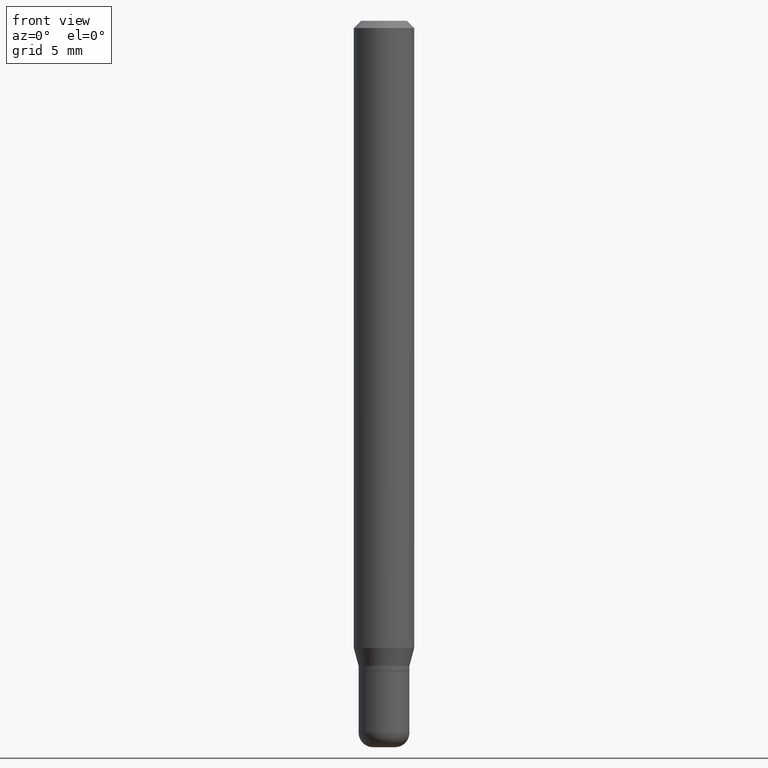
[diagram: clean part render]
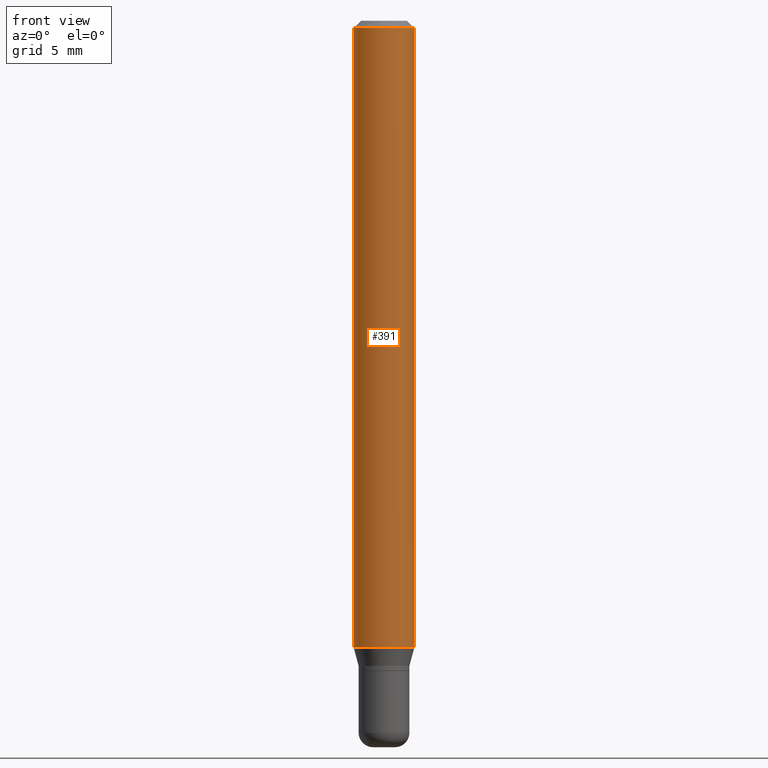
[diagram: same view with one face highlighted and labeled with its STEP entity id]
A machine part, front view. The second image highlights one B-rep face of the part: STEP entity #391.
In plain terms, the highlighted cylindrical surface (edge-blend (fillet) strip) has radius 1.5875 mm, axis along (-0, 0, 1).
Its self-contained STEP definition (entity closure, byte-faithful):
#9 = VERTEX_POINT ( 'NONE', #137 ) ;
#14 = FACE_OUTER_BOUND ( 'NONE', #317, .T. ) ;
#19 = CARTESIAN_POINT ( 'NONE',  ( 0.06250000000000000000, -4.364351673553916694E-16, 3.047610484872459871E-30 ) ) ;
#27 = DIRECTION ( 'NONE',  ( 1.000000000000000000, -6.982962677686262766E-15, 0.000000000000000000 ) ) ;
#48 = ORIENTED_EDGE ( 'NONE', *, *, #506, .T. ) ;
#62 = LINE ( 'NONE', #19, #238 ) ;
#118 = DIRECTION ( 'NONE',  ( 1.000000000000000000, -6.982962677686266711E-15, 0.000000000000000000 ) ) ;
#137 = CARTESIAN_POINT ( 'NONE',  ( 0.06250000000000000000, -4.888073874380378612E-16, -0.01499999999999970281 ) ) ;
#143 = DIRECTION ( 'NONE',  ( -2.445468806185136877E-29, 3.491481338843145188E-15, 1.000000000000000000 ) ) ;
#155 = CIRCLE ( 'NONE', #507, 0.06250000000000000000 ) ;
#157 = VERTEX_POINT ( 'NONE', #267 ) ;
#174 = EDGE_CURVE ( 'NONE', #291, #9, #62, .T. ) ;
#176 = LINE ( 'NONE', #454, #474 ) ;
#181 = DIRECTION ( 'NONE',  ( -2.445468806185136877E-29, 3.491481338843145188E-15, 1.000000000000000000 ) ) ;
#212 = ORIENTED_EDGE ( 'NONE', *, *, #174, .T. ) ;
#238 = VECTOR ( 'NONE', #181, 39.37007874015748143 ) ;
#245 = CARTESIAN_POINT ( 'NONE',  ( 3.668203209277632395E-31, -5.237222008264614861E-17, -0.01499999999999970281 ) ) ;
#248 = CARTESIAN_POINT ( 'NONE',  ( 0.000000000000000000, 0.000000000000000000, 0.000000000000000000 ) ) ;
#249 = ORIENTED_EDGE ( 'NONE', *, *, #272, .F. ) ;
#253 = CIRCLE ( 'NONE', #295, 0.06250000000000000000 ) ;
#264 = ORIENTED_EDGE ( 'NONE', *, *, #456, .F. ) ;
#267 = CARTESIAN_POINT ( 'NONE',  ( -0.06250000000000000000, -4.076260075986598044E-15, -1.294679491924312087 ) ) ;
#272 = EDGE_CURVE ( 'NONE', #157, #374, #176, .T. ) ;
#280 = DIRECTION ( 'NONE',  ( -2.445468806185136597E-29, 3.491481338843145583E-15, 1.000000000000000000 ) ) ;
#291 = VERTEX_POINT ( 'NONE', #337 ) ;
#295 = AXIS2_PLACEMENT_3D ( 'NONE', #511, #468, #27 ) ;
#317 = EDGE_LOOP ( 'NONE', ( #249, #48, #212, #264 ) ) ;
#327 = DIRECTION ( 'NONE',  ( 1.000000000000000000, -6.982962677686266711E-15, 4.876176775795935793E-29 ) ) ;
#337 = CARTESIAN_POINT ( 'NONE',  ( 0.06250000000000000000, -4.956784453192051541E-15, -1.294679491924312087 ) ) ;
#372 = CYLINDRICAL_SURFACE ( 'NONE', #400, 0.06250000000000000000 ) ;
#374 = VERTEX_POINT ( 'NONE', #477 ) ;
#391 = ADVANCED_FACE ( 'NONE', ( #14 ), #372, .T. ) ;
#400 = AXIS2_PLACEMENT_3D ( 'NONE', #248, #280, #327 ) ;
#454 = CARTESIAN_POINT ( 'NONE',  ( -0.06250000000000000000, 4.440892098500626162E-16, -3.074334431409316114E-30 ) ) ;
#456 = EDGE_CURVE ( 'NONE', #374, #9, #155, .T. ) ;
#468 = DIRECTION ( 'NONE',  ( -2.445468806185136597E-29, 3.491481338843145583E-15, 1.000000000000000000 ) ) ;
#474 = VECTOR ( 'NONE', #143, 39.37007874015748143 ) ;
#477 = CARTESIAN_POINT ( 'NONE',  ( -0.06250000000000000000, -1.842271543109590267E-15, -0.01499999999999970281 ) ) ;
#488 = DIRECTION ( 'NONE',  ( -2.445468806185136597E-29, 3.491481338843145583E-15, 1.000000000000000000 ) ) ;
#506 = EDGE_CURVE ( 'NONE', #157, #291, #253, .T. ) ;
#507 = AXIS2_PLACEMENT_3D ( 'NONE', #245, #488, #118 ) ;
#511 = CARTESIAN_POINT ( 'NONE',  ( 3.166098311508526589E-29, -4.520349285836659871E-15, -1.294679491924312087 ) ) ;